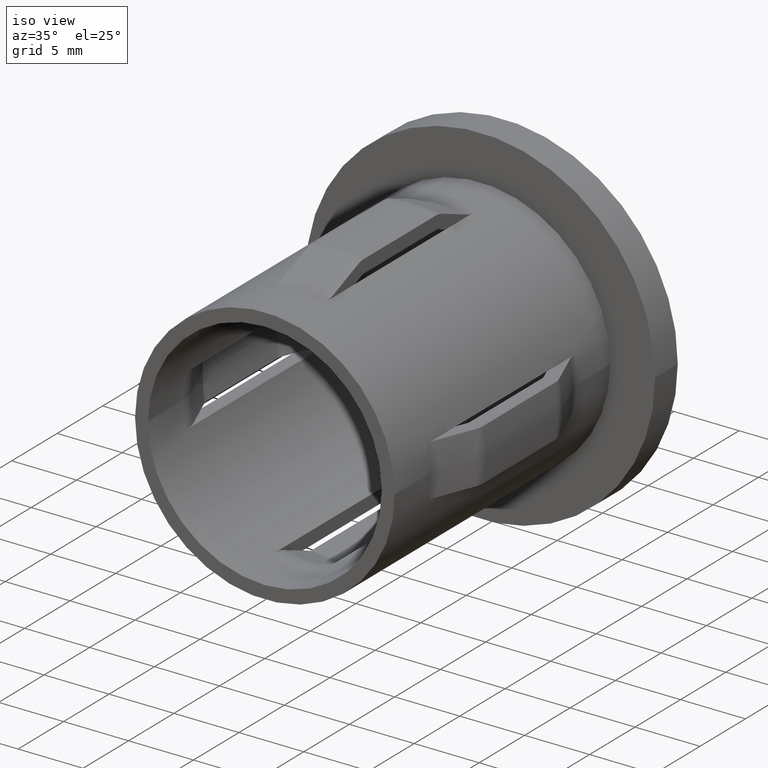
[diagram: clean part render]
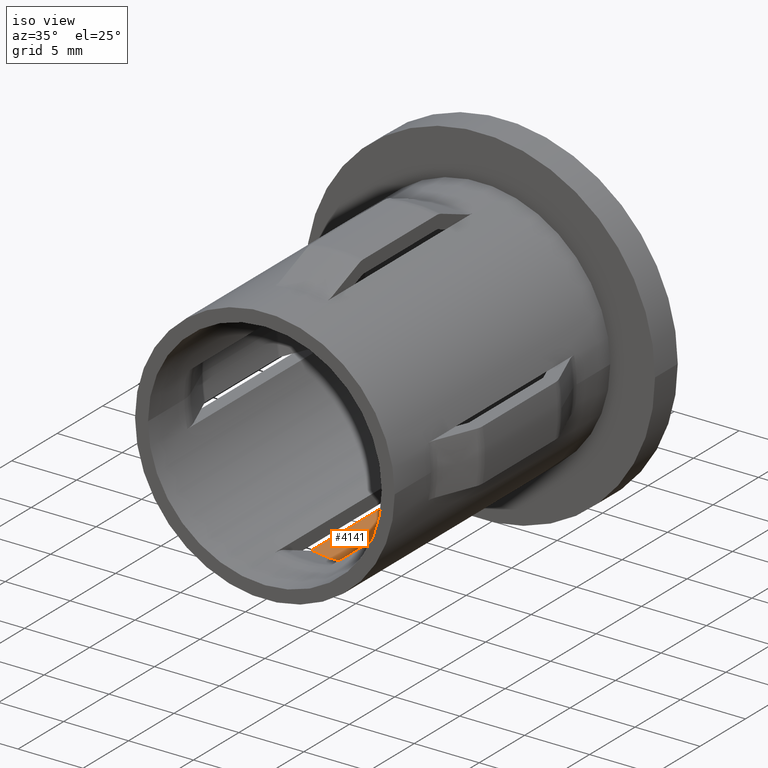
[diagram: same view with one face highlighted and labeled with its STEP entity id]
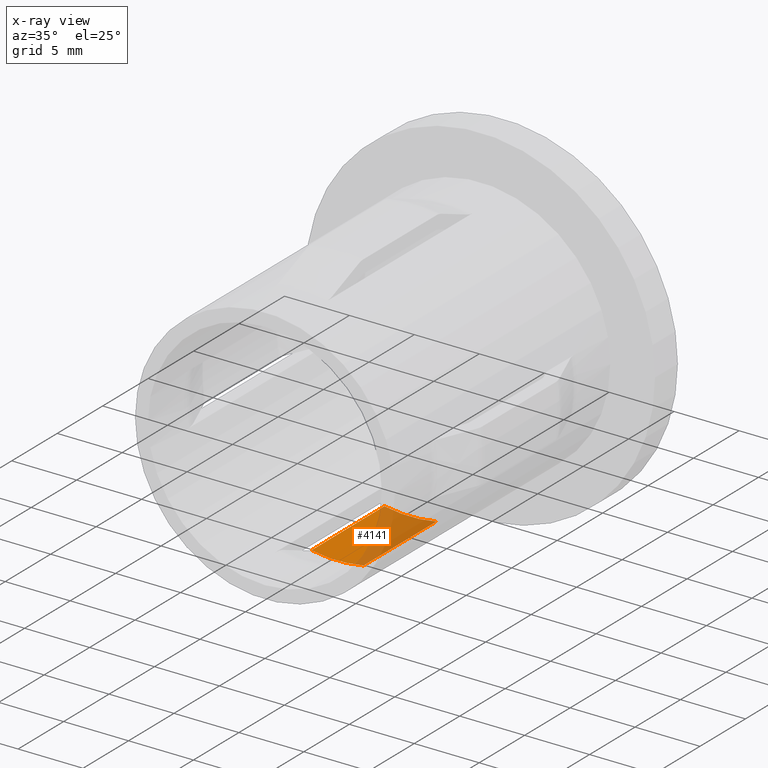
[diagram: x-ray of the same camera — body ghosted, the highlighted face saturated]
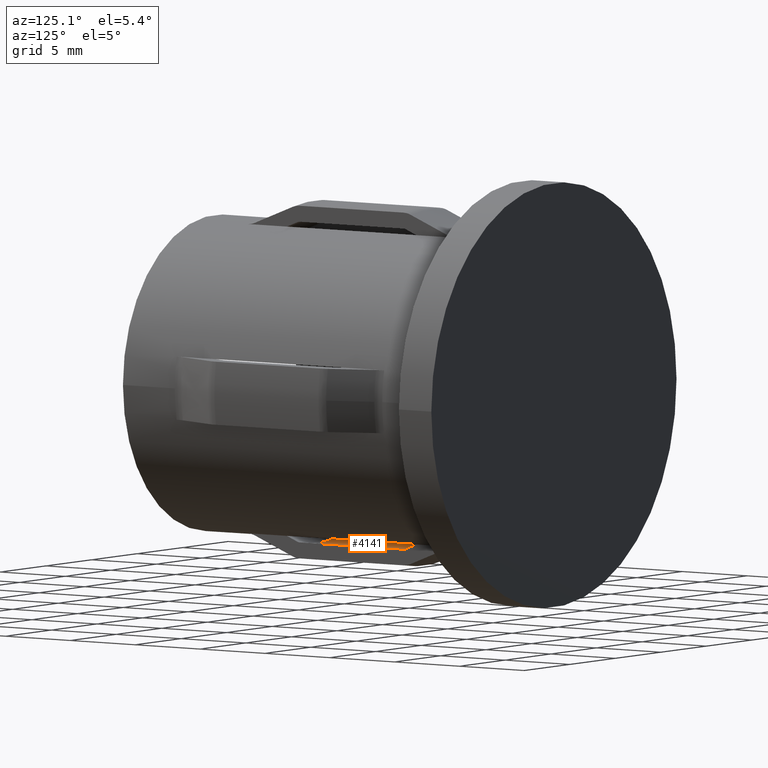
[diagram: same view with one face highlighted and labeled with its STEP entity id]
A machine part, iso view. The second image highlights one B-rep face of the part: STEP entity #4141.
The next image is the same camera in x-ray: the body ghosted, the highlighted face saturated — about 52% of this face is hidden behind the body in this view.
A second angle (auxiliary view) of the same face is appended — the face is thin or edge-on in the first view.
In plain terms, the highlighted cylindrical surface (partial cylindrical patch) has radius 10.35 mm, axis along (0, 1, -0).
Its self-contained STEP definition (entity closure, byte-faithful):
#138 = CARTESIAN_POINT ( 'NONE',  ( 2.000000000000002665, 26.19999999999999929, -10.15492491355795401 ) ) ;
#623 = FACE_OUTER_BOUND ( 'NONE', #5553, .T. ) ;
#714 = VERTEX_POINT ( 'NONE', #7634 ) ;
#2126 = CARTESIAN_POINT ( 'NONE',  ( 2.000000000000002665, 16.00000000000000000, -10.15492491355795401 ) ) ;
#2615 = ORIENTED_EDGE ( 'NONE', *, *, #13765, .T. ) ;
#3226 = DIRECTION ( 'NONE',  ( 7.347880794884120229E-17, 1.000000000000000000, -0.000000000000000000 ) ) ;
#3350 = CARTESIAN_POINT ( 'NONE',  ( -1.999999999999998668, 7.999999999999996447, -10.15492491355795401 ) ) ;
#3490 = DIRECTION ( 'NONE',  ( 7.347880794884120229E-17, 1.000000000000000000, -0.000000000000000000 ) ) ;
#3881 = LINE ( 'NONE', #138, #7512 ) ;
#4141 = ADVANCED_FACE ( 'NONE', ( #623 ), #6476, .F. ) ;
#4228 = CARTESIAN_POINT ( 'NONE',  ( -1.999999999999997335, 26.19999999999999929, -10.15492491355795401 ) ) ;
#4489 = CARTESIAN_POINT ( 'NONE',  ( -3.820898013339737983E-16, 16.00000000000000000, 0.000000000000000000 ) ) ;
#5315 = CARTESIAN_POINT ( 'NONE',  ( -9.699202649247035646E-16, 7.999999999999996447, 0.000000000000000000 ) ) ;
#5553 = EDGE_LOOP ( 'NONE', ( #10700, #2615, #9523, #11027 ) ) ;
#5859 = AXIS2_PLACEMENT_3D ( 'NONE', #4489, #8693, #8821 ) ;
#5936 = VERTEX_POINT ( 'NONE', #3350 ) ;
#6287 = EDGE_CURVE ( 'NONE', #5936, #714, #13759, .T. ) ;
#6456 = DIRECTION ( 'NONE',  ( -1.000000000000000000, 0.000000000000000000, 0.000000000000000000 ) ) ;
#6476 = CYLINDRICAL_SURFACE ( 'NONE', #10791, 10.35000000000000142 ) ;
#6565 = DIRECTION ( 'NONE',  ( 7.347880794884120229E-17, 1.000000000000000000, -0.000000000000000000 ) ) ;
#6574 = DIRECTION ( 'NONE',  ( -1.000000000000000000, 0.000000000000000000, 0.000000000000000000 ) ) ;
#7278 = VECTOR ( 'NONE', #12729, 1000.000000000000000 ) ;
#7512 = VECTOR ( 'NONE', #6565, 1000.000000000000000 ) ;
#7566 = AXIS2_PLACEMENT_3D ( 'NONE', #5315, #3226, #6456 ) ;
#7634 = CARTESIAN_POINT ( 'NONE',  ( -1.999999999999997335, 16.00000000000000000, -10.15492491355795579 ) ) ;
#7761 = CARTESIAN_POINT ( 'NONE',  ( 2.000000000000001332, 7.999999999999996447, -10.15492491355795401 ) ) ;
#7857 = EDGE_CURVE ( 'NONE', #8827, #5936, #8262, .T. ) ;
#8262 = CIRCLE ( 'NONE', #7566, 10.35000000000000320 ) ;
#8693 = DIRECTION ( 'NONE',  ( 7.347880794884120229E-17, 1.000000000000000000, -0.000000000000000000 ) ) ;
#8821 = DIRECTION ( 'NONE',  ( -1.000000000000000000, 0.000000000000000000, 0.000000000000000000 ) ) ;
#8827 = VERTEX_POINT ( 'NONE', #7761 ) ;
#9523 = ORIENTED_EDGE ( 'NONE', *, *, #11112, .T. ) ;
#10353 = VERTEX_POINT ( 'NONE', #2126 ) ;
#10700 = ORIENTED_EDGE ( 'NONE', *, *, #7857, .F. ) ;
#10791 = AXIS2_PLACEMENT_3D ( 'NONE', #10862, #3490, #6574 ) ;
#10862 = CARTESIAN_POINT ( 'NONE',  ( 3.673940397442062826E-16, 26.19999999999999929, 0.000000000000000000 ) ) ;
#11027 = ORIENTED_EDGE ( 'NONE', *, *, #6287, .F. ) ;
#11112 = EDGE_CURVE ( 'NONE', #10353, #714, #11733, .T. ) ;
#11733 = CIRCLE ( 'NONE', #5859, 10.35000000000000142 ) ;
#12729 = DIRECTION ( 'NONE',  ( 7.347880794884120229E-17, 1.000000000000000000, -0.000000000000000000 ) ) ;
#13759 = LINE ( 'NONE', #4228, #7278 ) ;
#13765 = EDGE_CURVE ( 'NONE', #8827, #10353, #3881, .T. ) ;